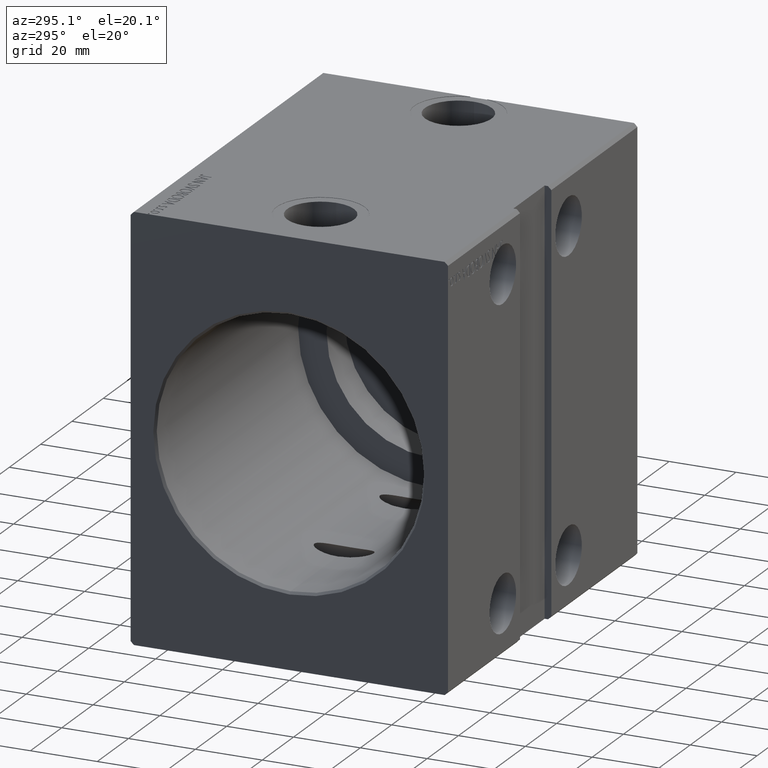
[diagram: clean part render]
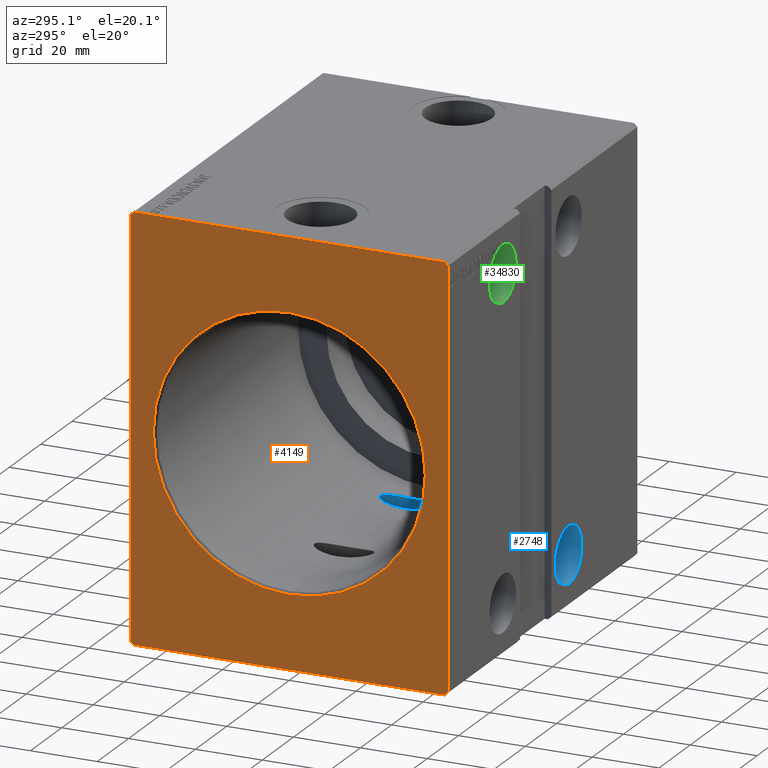
[diagram: same view with three faces highlighted in distinct colors, each labeled with its STEP entity id]
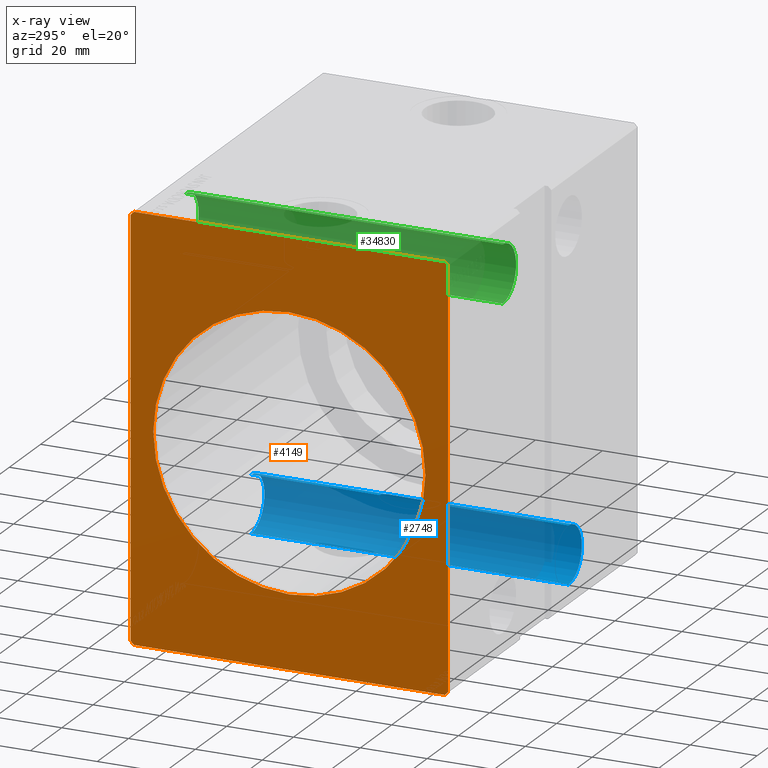
[diagram: x-ray of the same camera — body ghosted, the three highlighted faces saturated]
A machine part, auxiliary view with three faces highlighted in distinct colors.
The next image is the same camera in x-ray (body ghosted, the three faces saturated) — at least one of them is partly hidden behind the body in this view.
Their STEP definitions:

[orange] entity #4149 — the highlighted planar face has unit normal (1, 0, 0).
#698 = DIRECTION ( 'NONE',  ( 1.000000000000000000, 0.000000000000000000, 0.000000000000000000 ) ) ;
#1580 = VECTOR ( 'NONE', #23050, 1000.000000000000114 ) ;
#2018 = EDGE_CURVE ( 'NONE', #17298, #40712, #25623, .T. ) ;
#2163 = VERTEX_POINT ( 'NONE', #26469 ) ;
#2383 = VERTEX_POINT ( 'NONE', #30424 ) ;
#2871 = CARTESIAN_POINT ( 'NONE',  ( 0.000000000000000000, 46.50000000000000000, 62.49999999999998579 ) ) ;
#3050 = DIRECTION ( 'NONE',  ( 0.000000000000000000, -0.7071067811865474617, -0.7071067811865474617 ) ) ;
#4149 = ADVANCED_FACE ( 'NONE', ( #27520, #37358 ), #33945, .F. ) ;
#4648 = LINE ( 'NONE', #17724, #21199 ) ;
#5126 = EDGE_CURVE ( 'NONE', #40712, #22794, #26433, .T. ) ;
#6953 = LINE ( 'NONE', #16603, #1580 ) ;
#7649 = CARTESIAN_POINT ( 'NONE',  ( 0.000000000000000000, -46.50000000000000000, -62.50000000000001421 ) ) ;
#8187 = CARTESIAN_POINT ( 'NONE',  ( 0.000000000000000000, -46.50000000000001421, 62.49999999999997868 ) ) ;
#8744 = DIRECTION ( 'NONE',  ( 0.000000000000000000, 0.000000000000000000, -1.000000000000000000 ) ) ;
#8828 = CARTESIAN_POINT ( 'NONE',  ( 0.000000000000000000, -47.49999999999999289, -61.50000000000001421 ) ) ;
#9181 = ORIENTED_EDGE ( 'NONE', *, *, #28905, .T. ) ;
#9248 = ORIENTED_EDGE ( 'NONE', *, *, #28468, .F. ) ;
#9570 = EDGE_CURVE ( 'NONE', #23276, #17298, #26616, .T. ) ;
#10688 = EDGE_CURVE ( 'NONE', #23806, #25493, #4648, .T. ) ;
#10772 = ORIENTED_EDGE ( 'NONE', *, *, #5126, .F. ) ;
#10985 = EDGE_LOOP ( 'NONE', ( #25765, #27858, #9248, #29759, #17673, #32662, #10772, #18772 ) ) ;
#11545 = DIRECTION ( 'NONE',  ( 1.000000000000000000, 0.000000000000000000, 0.000000000000000000 ) ) ;
#14393 = LINE ( 'NONE', #30496, #23646 ) ;
#14501 = CIRCLE ( 'NONE', #38463, 40.70000000000003837 ) ;
#16334 = CARTESIAN_POINT ( 'NONE',  ( 0.000000000000000000, -46.50000000000001421, 62.49999999999997868 ) ) ;
#16603 = CARTESIAN_POINT ( 'NONE',  ( 0.000000000000000000, -47.49999999999999289, -61.50000000000001421 ) ) ;
#16867 = CARTESIAN_POINT ( 'NONE',  ( 0.000000000000000000, 47.50000000000001421, -61.50000000000001421 ) ) ;
#16982 = AXIS2_PLACEMENT_3D ( 'NONE', #30732, #698, #21075 ) ;
#17298 = VERTEX_POINT ( 'NONE', #34711 ) ;
#17673 = ORIENTED_EDGE ( 'NONE', *, *, #38315, .F. ) ;
#17724 = CARTESIAN_POINT ( 'NONE',  ( 0.000000000000000000, -46.50000000000000000, -62.50000000000001421 ) ) ;
#18609 = CARTESIAN_POINT ( 'NONE',  ( 0.000000000000000000, 0.000000000000000000, 0.000000000000000000 ) ) ;
#18772 = ORIENTED_EDGE ( 'NONE', *, *, #2018, .F. ) ;
#20178 = DIRECTION ( 'NONE',  ( 0.000000000000000000, -0.7071067811865474617, 0.7071067811865474617 ) ) ;
#20729 = LINE ( 'NONE', #16867, #39202 ) ;
#21075 = DIRECTION ( 'NONE',  ( 0.000000000000000000, 0.000000000000000000, -1.000000000000000000 ) ) ;
#21199 = VECTOR ( 'NONE', #34026, 1000.000000000000000 ) ;
#22794 = VERTEX_POINT ( 'NONE', #36416 ) ;
#23050 = DIRECTION ( 'NONE',  ( 0.000000000000000000, 0.7071067811865451302, -0.7071067811865500152 ) ) ;
#23276 = VERTEX_POINT ( 'NONE', #38376 ) ;
#23646 = VECTOR ( 'NONE', #37119, 999.9999999999998863 ) ;
#23806 = VERTEX_POINT ( 'NONE', #7649 ) ;
#24051 = DIRECTION ( 'NONE',  ( 1.000000000000000000, 0.000000000000000000, 0.000000000000000000 ) ) ;
#24515 = VECTOR ( 'NONE', #3050, 1000.000000000000114 ) ;
#25493 = VERTEX_POINT ( 'NONE', #42262 ) ;
#25623 = LINE ( 'NONE', #2871, #36768 ) ;
#25765 = ORIENTED_EDGE ( 'NONE', *, *, #9570, .F. ) ;
#26433 = LINE ( 'NONE', #16334, #24515 ) ;
#26434 = CARTESIAN_POINT ( 'NONE',  ( 0.000000000000000000, 0.000000000000000000, 40.70000000000003837 ) ) ;
#26469 = CARTESIAN_POINT ( 'NONE',  ( 0.000000000000000000, 4.984312472529732047E-15, -40.70000000000003837 ) ) ;
#26616 = LINE ( 'NONE', #33464, #28029 ) ;
#27520 = FACE_BOUND ( 'NONE', #28072, .T. ) ;
#27695 = DIRECTION ( 'NONE',  ( 0.000000000000000000, 0.000000000000000000, -1.000000000000000000 ) ) ;
#27747 = AXIS2_PLACEMENT_3D ( 'NONE', #18609, #11545, #8744 ) ;
#27858 = ORIENTED_EDGE ( 'NONE', *, *, #37067, .F. ) ;
#28029 = VECTOR ( 'NONE', #20178, 1000.000000000000114 ) ;
#28072 = EDGE_LOOP ( 'NONE', ( #9181, #30656 ) ) ;
#28199 = DIRECTION ( 'NONE',  ( 0.000000000000000000, -1.000000000000000000, -7.461176240760460157E-17 ) ) ;
#28468 = EDGE_CURVE ( 'NONE', #25493, #2383, #14393, .T. ) ;
#28905 = EDGE_CURVE ( 'NONE', #42023, #2163, #40729, .T. ) ;
#29611 = CARTESIAN_POINT ( 'NONE',  ( 0.000000000000000000, -47.50000000000001421, 61.49999999999997868 ) ) ;
#29759 = ORIENTED_EDGE ( 'NONE', *, *, #10688, .F. ) ;
#30424 = CARTESIAN_POINT ( 'NONE',  ( 0.000000000000000000, 47.50000000000001421, -61.50000000000001421 ) ) ;
#30496 = CARTESIAN_POINT ( 'NONE',  ( 0.000000000000000000, 46.50000000000000000, -62.50000000000000000 ) ) ;
#30656 = ORIENTED_EDGE ( 'NONE', *, *, #34994, .T. ) ;
#30732 = CARTESIAN_POINT ( 'NONE',  ( 0.000000000000000000, 0.000000000000000000, 0.000000000000000000 ) ) ;
#31025 = VERTEX_POINT ( 'NONE', #8828 ) ;
#32662 = ORIENTED_EDGE ( 'NONE', *, *, #39928, .F. ) ;
#32817 = LINE ( 'NONE', #29611, #33122 ) ;
#33122 = VECTOR ( 'NONE', #39661, 1000.000000000000000 ) ;
#33464 = CARTESIAN_POINT ( 'NONE',  ( 0.000000000000000000, 47.50000000000000000, 61.49999999999998579 ) ) ;
#33805 = DIRECTION ( 'NONE',  ( 0.000000000000000000, -1.128275431529630729E-16, 1.000000000000000000 ) ) ;
#33945 = PLANE ( 'NONE',  #16982 ) ;
#34026 = DIRECTION ( 'NONE',  ( 0.000000000000000000, 1.000000000000000000, 1.492235248152092278E-16 ) ) ;
#34711 = CARTESIAN_POINT ( 'NONE',  ( 0.000000000000000000, 46.50000000000000000, 62.49999999999998579 ) ) ;
#34994 = EDGE_CURVE ( 'NONE', #2163, #42023, #14501, .T. ) ;
#36416 = CARTESIAN_POINT ( 'NONE',  ( 0.000000000000000000, -47.50000000000001421, 61.49999999999997868 ) ) ;
#36768 = VECTOR ( 'NONE', #28199, 1000.000000000000000 ) ;
#37067 = EDGE_CURVE ( 'NONE', #2383, #23276, #20729, .T. ) ;
#37119 = DIRECTION ( 'NONE',  ( 0.000000000000000000, 0.7071067811865574537, 0.7071067811865376918 ) ) ;
#37323 = CARTESIAN_POINT ( 'NONE',  ( 0.000000000000000000, 0.000000000000000000, 0.000000000000000000 ) ) ;
#37358 = FACE_OUTER_BOUND ( 'NONE', #10985, .T. ) ;
#38315 = EDGE_CURVE ( 'NONE', #31025, #23806, #6953, .T. ) ;
#38376 = CARTESIAN_POINT ( 'NONE',  ( 0.000000000000000000, 47.50000000000000000, 61.49999999999998579 ) ) ;
#38463 = AXIS2_PLACEMENT_3D ( 'NONE', #37323, #24051, #27695 ) ;
#39202 = VECTOR ( 'NONE', #33805, 1000.000000000000000 ) ;
#39661 = DIRECTION ( 'NONE',  ( 0.000000000000000000, 1.692413147294445970E-16, -1.000000000000000000 ) ) ;
#39928 = EDGE_CURVE ( 'NONE', #22794, #31025, #32817, .T. ) ;
#40712 = VERTEX_POINT ( 'NONE', #8187 ) ;
#40729 = CIRCLE ( 'NONE', #27747, 40.70000000000003837 ) ;
#42023 = VERTEX_POINT ( 'NONE', #26434 ) ;
#42262 = CARTESIAN_POINT ( 'NONE',  ( 0.000000000000000000, 46.50000000000000000, -62.50000000000000000 ) ) ;

[blue] entity #2748 — the highlighted cylindrical surface (edge-blend (fillet) strip) has radius 8.5 mm, axis along (-0, -1, -0).
#5 = DIRECTION ( 'NONE',  ( -0.000000000000000000, -1.000000000000000000, -5.507058653894625853E-17 ) ) ;
#142 = CARTESIAN_POINT ( 'NONE',  ( 77.44814496955359573, -8.848081900637742692, -39.00919150776434918 ) ) ;
#773 = CARTESIAN_POINT ( 'NONE',  ( 80.72230825713940305, -3.484280546040502635, -39.85734299538246006 ) ) ;
#992 = CARTESIAN_POINT ( 'NONE',  ( 81.00000000000002842, -0.8842772873619378915, -39.99999999999999289 ) ) ;
#1330 = EDGE_LOOP ( 'NONE', ( #8375, #12990, #3168, #13929, #20328, #8191, #25334 ) ) ;
#2026 = CYLINDRICAL_SURFACE ( 'NONE', #21058, 8.500000000000007105 ) ;
#2712 = CARTESIAN_POINT ( 'NONE',  ( 80.54571038801331895, 4.366864057599704196, -39.76972919806477336 ) ) ;
#2748 = ADVANCED_FACE ( 'NONE', ( #31418 ), #2026, .F. ) ;
#2809 = CARTESIAN_POINT ( 'NONE',  ( 77.00000000000001421, 47.50000000000003553, -47.50000000000000000 ) ) ;
#3168 = ORIENTED_EDGE ( 'NONE', *, *, #40738, .T. ) ;
#3990 = CARTESIAN_POINT ( 'NONE',  ( 77.00000000000001421, 47.50000000000003553, -38.99999999999999289 ) ) ;
#4213 = CARTESIAN_POINT ( 'NONE',  ( 80.00983182122091364, -6.007179968913204604, -39.54838495781831398 ) ) ;
#4447 = EDGE_CURVE ( 'NONE', #32976, #12187, #22585, .T. ) ;
#5932 = CARTESIAN_POINT ( 'NONE',  ( 77.86322018110577403, 8.705178891867166868, -39.04132803922884420 ) ) ;
#6401 = AXIS2_PLACEMENT_3D ( 'NONE', #16570, #39510, #10141 ) ;
#7435 = CARTESIAN_POINT ( 'NONE',  ( 78.43557347892667053, -8.344890487185304906, -39.12006350427106582 ) ) ;
#8191 = ORIENTED_EDGE ( 'NONE', *, *, #27830, .F. ) ;
#8375 = ORIENTED_EDGE ( 'NONE', *, *, #9573, .F. ) ;
#8934 = CARTESIAN_POINT ( 'NONE',  ( 80.98638329437710581, 0.8819960549049445930, -39.99268894227613913 ) ) ;
#9535 = EDGE_CURVE ( 'NONE', #36477, #13778, #25305, .T. ) ;
#9573 = EDGE_CURVE ( 'NONE', #13778, #32976, #25977, .T. ) ;
#9835 = VECTOR ( 'NONE', #11617, 1000.000000000000000 ) ;
#10141 = DIRECTION ( 'NONE',  ( 0.000000000000000000, 0.000000000000000000, 1.000000000000000000 ) ) ;
#10226 = CARTESIAN_POINT ( 'NONE',  ( 77.22259166980755651, -8.888194417315617102, -39.00000000000000000 ) ) ;
#11617 = DIRECTION ( 'NONE',  ( -0.000000000000000000, -1.000000000000000000, -5.507058653894625853E-17 ) ) ;
#11733 = CARTESIAN_POINT ( 'NONE',  ( 78.59111670934548499, 8.209697689840799839, -39.14877357463412011 ) ) ;
#12109 = DIRECTION ( 'NONE',  ( -0.000000000000000000, -1.000000000000000000, -5.507058653894625853E-17 ) ) ;
#12154 = CARTESIAN_POINT ( 'NONE',  ( 78.06190118001926237, 8.600817236881001193, -39.06458831139043042 ) ) ;
#12187 = VERTEX_POINT ( 'NONE', #28306 ) ;
#12320 = DIRECTION ( 'NONE',  ( 0.000000000000000000, 0.000000000000000000, -1.000000000000000000 ) ) ;
#12591 = CARTESIAN_POINT ( 'NONE',  ( 81.00000000000002842, 0.4396523920247054629, -40.00000000000000000 ) ) ;
#12990 = ORIENTED_EDGE ( 'NONE', *, *, #9535, .F. ) ;
#13432 = DIRECTION ( 'NONE',  ( -0.000000000000000000, -1.000000000000000000, -5.507058653894625853E-17 ) ) ;
#13630 = VECTOR ( 'NONE', #5, 1000.000000000000000 ) ;
#13778 = VERTEX_POINT ( 'NONE', #41933 ) ;
#13929 = ORIENTED_EDGE ( 'NONE', *, *, #40515, .F. ) ;
#14080 = CARTESIAN_POINT ( 'NONE',  ( 80.94656372586341320, -1.758256962777163812, -39.97069594125082403 ) ) ;
#14825 = LINE ( 'NONE', #40978, #9835 ) ;
#15238 = DIRECTION ( 'NONE',  ( 0.000000000000000000, -1.000000000000000000, -5.507058653894625853E-17 ) ) ;
#15779 = CARTESIAN_POINT ( 'NONE',  ( 80.15652418789123601, 5.611982908940339243, -39.60657601176857412 ) ) ;
#16004 = CARTESIAN_POINT ( 'NONE',  ( 78.42566298075200848, 8.352678000873540398, -39.11839576585898470 ) ) ;
#16570 = CARTESIAN_POINT ( 'NONE',  ( 77.00000000000001421, -47.50000000000000711, -47.50000000000000711 ) ) ;
#16868 = CARTESIAN_POINT ( 'NONE',  ( 77.86954469703442783, -8.702382527277800151, -39.04195325235095737 ) ) ;
#17291 = CARTESIAN_POINT ( 'NONE',  ( 78.91073227392961087, -7.882168046752712876, -39.21603928047622389 ) ) ;
#18810 = CARTESIAN_POINT ( 'NONE',  ( 79.63629655112558225, 6.817500190868268639, -39.41680541524587511 ) ) ;
#19015 = CARTESIAN_POINT ( 'NONE',  ( 80.00453569807767451, 6.020847662574150938, -39.54633044189965574 ) ) ;
#19672 = CARTESIAN_POINT ( 'NONE',  ( 81.00000000000140687, 1.997970507834764869E-13, -40.00000000000000000 ) ) ;
#20328 = ORIENTED_EDGE ( 'NONE', *, *, #36289, .F. ) ;
#21058 = AXIS2_PLACEMENT_3D ( 'NONE', #41260, #12109, #12320 ) ;
#22198 = CARTESIAN_POINT ( 'NONE',  ( 77.00000000000001421, -47.50000000000000711, -56.00000000000001421 ) ) ;
#22450 = CARTESIAN_POINT ( 'NONE',  ( 77.22073123561260388, 8.878721509888563901, -39.00216240224276731 ) ) ;
#22573 = CARTESIAN_POINT ( 'NONE',  ( 77.00000000000001421, -8.888194417315611773, -38.99999999999999289 ) ) ;
#22585 = B_SPLINE_CURVE_WITH_KNOTS ( 'NONE', 3,
 ( #35313, #41733, #22450, #25458, #24819, #5932, #12154, #16004, #11733, #28464, #28248, #41519, #18810, #19015, #15779, #2712, #25033, #41091, #28889, #8934, #12591, #41309 ),
 .UNSPECIFIED., .F., .F.,
 ( 4, 2, 2, 2, 2, 2, 2, 2, 2, 2, 4 ),
 ( 0.03124075680283506032, 0.03156586646944088692, 0.03189097613604671699, 0.03254119546925837020, 0.03319141480247002340, 0.03384163413568167661, 0.03514207280210498302, 0.03644251146852828943, 0.03904338880137488837, 0.04034382746779818785, 0.04164426613422148038 ),
 .UNSPECIFIED. ) ;
#23101 = CARTESIAN_POINT ( 'NONE',  ( 79.43569995406782880, -7.179022913423093399, -39.35214896718181876 ) ) ;
#23463 = VERTEX_POINT ( 'NONE', #28271 ) ;
#23531 = CARTESIAN_POINT ( 'NONE',  ( 79.05180541677445660, -7.710174617361056804, -39.25029562884186163 ) ) ;
#23552 = CIRCLE ( 'NONE', #6401, 8.500000000000007105 ) ;
#24819 = CARTESIAN_POINT ( 'NONE',  ( 77.54851048221541987, 8.813063603515839617, -39.01706381279741009 ) ) ;
#25033 = CARTESIAN_POINT ( 'NONE',  ( 80.71853671562247712, 3.508186181228631462, -39.85547049742937276 ) ) ;
#25305 = CIRCLE ( 'NONE', #36249, 8.500000000000007105 ) ;
#25334 = ORIENTED_EDGE ( 'NONE', *, *, #4447, .F. ) ;
#25458 = CARTESIAN_POINT ( 'NONE',  ( 77.43934574472250176, 8.841323074390446735, -39.01065718486845668 ) ) ;
#25977 = LINE ( 'NONE', #39885, #13630 ) ;
#27830 = EDGE_CURVE ( 'NONE', #12187, #28395, #29761, .T. ) ;
#28248 = CARTESIAN_POINT ( 'NONE',  ( 79.03930862434323501, 7.725932859796192709, -39.24719242089387450 ) ) ;
#28271 = CARTESIAN_POINT ( 'NONE',  ( 77.00000000000001421, -47.50000000000000711, -39.00000000000000000 ) ) ;
#28306 = CARTESIAN_POINT ( 'NONE',  ( 81.00000000000140687, 1.997970507834764869E-13, -40.00000000000000000 ) ) ;
#28395 = VERTEX_POINT ( 'NONE', #22573 ) ;
#28464 = CARTESIAN_POINT ( 'NONE',  ( 78.89834460036773578, 7.896197384792814411, -39.21320792050732962 ) ) ;
#28889 = CARTESIAN_POINT ( 'NONE',  ( 80.93123102730365304, 1.760347307088206525, -39.96366178458815455 ) ) ;
#29068 = CARTESIAN_POINT ( 'NONE',  ( 77.00000000000001421, 47.50000000000003553, -56.00000000000000711 ) ) ;
#29747 = LINE ( 'NONE', #3990, #37130 ) ;
#29761 = B_SPLINE_CURVE_WITH_KNOTS ( 'NONE', 3,
 ( #19672, #992, #14080, #773, #33593, #36166, #4213, #37007, #23101, #23531, #17291, #36797, #7435, #39388, #16868, #142, #10226, #33806 ),
 .UNSPECIFIED., .F., .F.,
 ( 4, 2, 2, 2, 2, 2, 2, 2, 4 ),
 ( 4.021753678917412803E-16, 0.002615585396976376382, 0.005231170793952351177, 0.006538963492440343778, 0.007846756190928337246, 0.008500652540172336583, 0.009154548889416335919, 0.009808445238660335255, 0.01046234158790433459 ),
 .UNSPECIFIED. ) ;
#31378 = CARTESIAN_POINT ( 'NONE',  ( 77.00000000000001421, 8.888194417315609996, -38.99999999999999289 ) ) ;
#31418 = FACE_OUTER_BOUND ( 'NONE', #1330, .T. ) ;
#32976 = VERTEX_POINT ( 'NONE', #31378 ) ;
#33593 = CARTESIAN_POINT ( 'NONE',  ( 80.55324516737658769, -4.336586243679171560, -39.77318005738936790 ) ) ;
#33806 = CARTESIAN_POINT ( 'NONE',  ( 77.00000000000001421, -8.888194417315611773, -38.99999999999999289 ) ) ;
#35313 = CARTESIAN_POINT ( 'NONE',  ( 77.00000000000001421, 8.888194417315609996, -38.99999999999999289 ) ) ;
#36166 = CARTESIAN_POINT ( 'NONE',  ( 80.16384749387300701, -5.591509799604481579, -39.60950613416584787 ) ) ;
#36249 = AXIS2_PLACEMENT_3D ( 'NONE', #2809, #15238, #42042 ) ;
#36289 = EDGE_CURVE ( 'NONE', #28395, #23463, #29747, .T. ) ;
#36372 = VERTEX_POINT ( 'NONE', #22198 ) ;
#36477 = VERTEX_POINT ( 'NONE', #29068 ) ;
#36797 = CARTESIAN_POINT ( 'NONE',  ( 78.60192945023011646, -8.199952475798220064, -39.15082488734757504 ) ) ;
#37007 = CARTESIAN_POINT ( 'NONE',  ( 79.64571886948708368, -6.799238401160328849, -39.41993557979120766 ) ) ;
#37130 = VECTOR ( 'NONE', #13432, 1000.000000000000000 ) ;
#39388 = CARTESIAN_POINT ( 'NONE',  ( 78.06971018587701394, -8.596468886650193042, -39.06555117366413299 ) ) ;
#39510 = DIRECTION ( 'NONE',  ( -0.000000000000000000, 1.000000000000000000, 1.692413147294446216E-16 ) ) ;
#39885 = CARTESIAN_POINT ( 'NONE',  ( 77.00000000000001421, 47.50000000000003553, -38.99999999999999289 ) ) ;
#40515 = EDGE_CURVE ( 'NONE', #23463, #36372, #23552, .T. ) ;
#40738 = EDGE_CURVE ( 'NONE', #36477, #36372, #14825, .T. ) ;
#40978 = CARTESIAN_POINT ( 'NONE',  ( 77.00000000000001421, 47.50000000000003553, -56.00000000000000711 ) ) ;
#41091 = CARTESIAN_POINT ( 'NONE',  ( 80.88971534772775840, 2.198302733259653419, -39.94194461723602529 ) ) ;
#41260 = CARTESIAN_POINT ( 'NONE',  ( 77.00000000000001421, 47.50000000000003553, -47.50000000000000000 ) ) ;
#41309 = CARTESIAN_POINT ( 'NONE',  ( 81.00000000000140687, 1.997970507834764869E-13, -40.00000000000000000 ) ) ;
#41519 = CARTESIAN_POINT ( 'NONE',  ( 79.42428242203959599, 7.197676588651847673, -39.34872371033357297 ) ) ;
#41733 = CARTESIAN_POINT ( 'NONE',  ( 77.11072475337969934, 8.888194417315611773, -39.00000000000000711 ) ) ;
#41933 = CARTESIAN_POINT ( 'NONE',  ( 77.00000000000001421, 47.50000000000003553, -38.99999999999999289 ) ) ;
#42042 = DIRECTION ( 'NONE',  ( 0.000000000000000000, 0.000000000000000000, -1.000000000000000000 ) ) ;

[green] entity #34830 — the highlighted cylindrical surface (edge-blend (fillet) strip) has radius 8.5 mm, axis along (-0, -1, -0).
#146 = CARTESIAN_POINT ( 'NONE',  ( 34.99999999999999289, 47.50000000000003553, 38.99999999999999289 ) ) ;
#268 = VERTEX_POINT ( 'NONE', #35918 ) ;
#414 = VERTEX_POINT ( 'NONE', #38869 ) ;
#1181 = CARTESIAN_POINT ( 'NONE',  ( 34.99999999999999289, -8.888194417315647300, 38.99999999999998579 ) ) ;
#1390 = CARTESIAN_POINT ( 'NONE',  ( 36.42566298075198716, -8.352678000873565267, 39.11839576585896339 ) ) ;
#1902 = EDGE_CURVE ( 'NONE', #33458, #2001, #36999, .T. ) ;
#2001 = VERTEX_POINT ( 'NONE', #25834 ) ;
#3200 = CARTESIAN_POINT ( 'NONE',  ( 36.60192945023006672, 8.199952475798266249, 39.15082488734756794 ) ) ;
#4412 = CARTESIAN_POINT ( 'NONE',  ( 37.63629655112554673, -6.817500190868300614, 39.41680541524585379 ) ) ;
#4761 = VERTEX_POINT ( 'NONE', #7420 ) ;
#5035 = CARTESIAN_POINT ( 'NONE',  ( 38.54571038801328342, -4.366864057599725513, 39.76972919806477336 ) ) ;
#5041 = DIRECTION ( 'NONE',  ( 0.000000000000000000, 0.000000000000000000, -1.000000000000000000 ) ) ;
#5353 = CARTESIAN_POINT ( 'NONE',  ( 38.55324516737658058, 4.336586243679193764, 39.77318005738936080 ) ) ;
#6631 = CARTESIAN_POINT ( 'NONE',  ( 36.43557347892666343, 8.344890487185367078, 39.12006350427105161 ) ) ;
#6966 = EDGE_CURVE ( 'NONE', #414, #4761, #19092, .T. ) ;
#7066 = DIRECTION ( 'NONE',  ( -0.000000000000000000, 1.000000000000000000, 1.692413147294446216E-16 ) ) ;
#7146 = LINE ( 'NONE', #19803, #34371 ) ;
#7420 = CARTESIAN_POINT ( 'NONE',  ( 34.99999999999999289, 47.50000000000003553, 55.99999999999999289 ) ) ;
#7628 = CARTESIAN_POINT ( 'NONE',  ( 38.93123102730363883, -1.760347307088218072, 39.96366178458815455 ) ) ;
#7636 = DIRECTION ( 'NONE',  ( 0.000000000000000000, -1.000000000000000000, -5.507058653894625853E-17 ) ) ;
#8045 = CARTESIAN_POINT ( 'NONE',  ( 38.00453569807764609, -6.020847662574181136, 39.54633044189965574 ) ) ;
#8259 = CARTESIAN_POINT ( 'NONE',  ( 34.99999999999999289, 47.50000000000003553, 47.49999999999999289 ) ) ;
#8494 = EDGE_LOOP ( 'NONE', ( #13507, #24287, #38437, #24496, #11912, #8973, #31286 ) ) ;
#8581 = CARTESIAN_POINT ( 'NONE',  ( 38.72230825713939595, 3.484280546040521287, 39.85734299538246006 ) ) ;
#8674 = DIRECTION ( 'NONE',  ( -0.000000000000000000, -1.000000000000000000, -5.507058653894625853E-17 ) ) ;
#8973 = ORIENTED_EDGE ( 'NONE', *, *, #28964, .T. ) ;
#9434 = CARTESIAN_POINT ( 'NONE',  ( 38.00983182122093496, 6.007179968913225920, 39.54838495781831398 ) ) ;
#9830 = CIRCLE ( 'NONE', #29704, 8.500000000000007105 ) ;
#10847 = CARTESIAN_POINT ( 'NONE',  ( 37.42428242203959599, -7.197676588651887641, 39.34872371033356586 ) ) ;
#11268 = CARTESIAN_POINT ( 'NONE',  ( 35.43934574472248755, -8.841323074390480485, 39.01065718486842826 ) ) ;
#11912 = ORIENTED_EDGE ( 'NONE', *, *, #1902, .F. ) ;
#12010 = CARTESIAN_POINT ( 'NONE',  ( 39.00000000000139977, -1.975033726230713128E-13, 40.00000000000000000 ) ) ;
#12217 = CARTESIAN_POINT ( 'NONE',  ( 35.86954469703439941, 8.702382527277837454, 39.04195325235094316 ) ) ;
#12537 = B_SPLINE_CURVE_WITH_KNOTS ( 'NONE', 3,
 ( #12010, #31315, #24884, #8581, #5353, #31523, #9434, #29375, #19078, #16278, #15843, #3200, #6631, #16069, #12217, #32159, #42432, #38362 ),
 .UNSPECIFIED., .F., .F.,
 ( 4, 2, 2, 2, 2, 2, 2, 2, 4 ),
 ( 4.041264202224836000E-16, 0.002615585396976400669, 0.005231170793952397147, 0.006538963492440391483, 0.007846756190928385818, 0.008500652540172383420, 0.009154548889416382756, 0.009808445238660380358, 0.01046234158790437796 ),
 .UNSPECIFIED. ) ;
#13507 = ORIENTED_EDGE ( 'NONE', *, *, #31743, .F. ) ;
#14061 = CARTESIAN_POINT ( 'NONE',  ( 35.54851048221539855, -8.813063603515876920, 39.01706381279742430 ) ) ;
#15406 = EDGE_CURVE ( 'NONE', #2001, #268, #12537, .T. ) ;
#15843 = CARTESIAN_POINT ( 'NONE',  ( 36.91073227392959666, 7.882168046752754620, 39.21603928047621679 ) ) ;
#15853 = CARTESIAN_POINT ( 'NONE',  ( 34.99999999999999289, -47.50000000000002132, 55.99999999999999289 ) ) ;
#16069 = CARTESIAN_POINT ( 'NONE',  ( 36.06971018587698552, 8.596468886650258767, 39.06555117366413299 ) ) ;
#16278 = CARTESIAN_POINT ( 'NONE',  ( 37.05180541677442108, 7.710174617361084337, 39.25029562884185452 ) ) ;
#16451 = LINE ( 'NONE', #146, #25008 ) ;
#16499 = CARTESIAN_POINT ( 'NONE',  ( 34.99999999999999289, -8.888194417315647300, 38.99999999999998579 ) ) ;
#17822 = VERTEX_POINT ( 'NONE', #32083 ) ;
#18540 = CARTESIAN_POINT ( 'NONE',  ( 34.99999999999999289, 47.50000000000003553, 47.49999999999999289 ) ) ;
#19078 = CARTESIAN_POINT ( 'NONE',  ( 37.43569995406782880, 7.179022913423121821, 39.35214896718182587 ) ) ;
#19092 = CIRCLE ( 'NONE', #28002, 8.500000000000000000 ) ;
#19803 = CARTESIAN_POINT ( 'NONE',  ( 34.99999999999999289, 47.50000000000003553, 38.99999999999999289 ) ) ;
#20235 = DIRECTION ( 'NONE',  ( -0.000000000000000000, -1.000000000000000000, -5.507058653894625853E-17 ) ) ;
#20575 = CARTESIAN_POINT ( 'NONE',  ( 34.99999999999999289, -47.50000000000002132, 47.49999999999998579 ) ) ;
#20712 = CARTESIAN_POINT ( 'NONE',  ( 38.98638329437710581, -0.8819960549049492560, 39.99268894227613202 ) ) ;
#21126 = CARTESIAN_POINT ( 'NONE',  ( 39.00000000000139977, -1.975033726230713128E-13, 40.00000000000000000 ) ) ;
#22661 = LINE ( 'NONE', #31888, #24710 ) ;
#23389 = EDGE_CURVE ( 'NONE', #33441, #17822, #9830, .T. ) ;
#24104 = AXIS2_PLACEMENT_3D ( 'NONE', #18540, #8674, #5041 ) ;
#24287 = ORIENTED_EDGE ( 'NONE', *, *, #6966, .F. ) ;
#24352 = CARTESIAN_POINT ( 'NONE',  ( 36.59111670934544946, -8.209697689840838919, 39.14877357463409879 ) ) ;
#24496 = ORIENTED_EDGE ( 'NONE', *, *, #15406, .F. ) ;
#24710 = VECTOR ( 'NONE', #29318, 1000.000000000000000 ) ;
#24884 = CARTESIAN_POINT ( 'NONE',  ( 38.94656372586340609, 1.758256962777178023, 39.97069594125082403 ) ) ;
#25008 = VECTOR ( 'NONE', #29341, 1000.000000000000000 ) ;
#25834 = CARTESIAN_POINT ( 'NONE',  ( 39.00000000000139977, -1.975033726230713128E-13, 40.00000000000000000 ) ) ;
#27567 = CARTESIAN_POINT ( 'NONE',  ( 36.89834460036773578, -7.896197384792859708, 39.21320792050733672 ) ) ;
#27788 = FACE_OUTER_BOUND ( 'NONE', #8494, .T. ) ;
#27991 = CARTESIAN_POINT ( 'NONE',  ( 38.15652418789123601, -5.611982908940366777, 39.60657601176856701 ) ) ;
#28002 = AXIS2_PLACEMENT_3D ( 'NONE', #8259, #7636, #40428 ) ;
#28964 = EDGE_CURVE ( 'NONE', #33458, #17822, #16451, .T. ) ;
#29318 = DIRECTION ( 'NONE',  ( -0.000000000000000000, -1.000000000000000000, -5.507058653894625853E-17 ) ) ;
#29341 = DIRECTION ( 'NONE',  ( -0.000000000000000000, -1.000000000000000000, -5.507058653894625853E-17 ) ) ;
#29375 = CARTESIAN_POINT ( 'NONE',  ( 37.64571886948710500, 6.799238401160353718, 39.41993557979120055 ) ) ;
#29704 = AXIS2_PLACEMENT_3D ( 'NONE', #20575, #7066, #33862 ) ;
#30369 = CARTESIAN_POINT ( 'NONE',  ( 39.00000000000001421, -0.4396523920247069062, 39.99999999999999289 ) ) ;
#30779 = CARTESIAN_POINT ( 'NONE',  ( 36.06190118001924105, -8.600817236881033168, 39.06458831139042331 ) ) ;
#31286 = ORIENTED_EDGE ( 'NONE', *, *, #23389, .F. ) ;
#31315 = CARTESIAN_POINT ( 'NONE',  ( 39.00000000000003553, 0.8842772873619435536, 40.00000000000000000 ) ) ;
#31523 = CARTESIAN_POINT ( 'NONE',  ( 38.16384749387303543, 5.591509799604510000, 39.60950613416584787 ) ) ;
#31743 = EDGE_CURVE ( 'NONE', #4761, #33441, #22661, .T. ) ;
#31888 = CARTESIAN_POINT ( 'NONE',  ( 34.99999999999999289, 47.50000000000003553, 55.99999999999999289 ) ) ;
#32083 = CARTESIAN_POINT ( 'NONE',  ( 34.99999999999999289, -47.50000000000002132, 38.99999999999997868 ) ) ;
#32159 = CARTESIAN_POINT ( 'NONE',  ( 35.44814496955356731, 8.848081900637779995, 39.00919150776432787 ) ) ;
#33441 = VERTEX_POINT ( 'NONE', #15853 ) ;
#33458 = VERTEX_POINT ( 'NONE', #16499 ) ;
#33862 = DIRECTION ( 'NONE',  ( 0.000000000000000000, 0.000000000000000000, 1.000000000000000000 ) ) ;
#33982 = EDGE_CURVE ( 'NONE', #414, #268, #7146, .T. ) ;
#33996 = CARTESIAN_POINT ( 'NONE',  ( 35.11072475337967091, -8.888194417315668616, 39.00000000000000000 ) ) ;
#34371 = VECTOR ( 'NONE', #20235, 1000.000000000000000 ) ;
#34406 = CARTESIAN_POINT ( 'NONE',  ( 35.86322018110575272, -8.705178891867207724, 39.04132803922882999 ) ) ;
#34618 = CARTESIAN_POINT ( 'NONE',  ( 38.88971534772777261, -2.198302733259665409, 39.94194461723602529 ) ) ;
#34830 = ADVANCED_FACE ( 'NONE', ( #27788 ), #41049, .F. ) ;
#35918 = CARTESIAN_POINT ( 'NONE',  ( 34.99999999999999289, 8.888194417315633089, 38.99999999999998579 ) ) ;
#36989 = CARTESIAN_POINT ( 'NONE',  ( 38.71853671562244159, -3.508186181228653666, 39.85547049742936565 ) ) ;
#36999 = B_SPLINE_CURVE_WITH_KNOTS ( 'NONE', 3,
 ( #1181, #33996, #40837, #11268, #14061, #34406, #30779, #1390, #24352, #27567, #40213, #10847, #4412, #8045, #27991, #5035, #36989, #34618, #7628, #20712, #30369, #21126 ),
 .UNSPECIFIED., .F., .F.,
 ( 4, 2, 2, 2, 2, 2, 2, 2, 2, 2, 4 ),
 ( 0.03124075680283536910, 0.03156586646944119223, 0.03189097613604702230, 0.03254119546925867551, 0.03319141480247032872, 0.03384163413568198192, 0.03514207280210529527, 0.03644251146852860168, 0.03904338880137522144, 0.04034382746779853479, 0.04164426613422184814 ),
 .UNSPECIFIED. ) ;
#38362 = CARTESIAN_POINT ( 'NONE',  ( 34.99999999999999289, 8.888194417315633089, 38.99999999999998579 ) ) ;
#38437 = ORIENTED_EDGE ( 'NONE', *, *, #33982, .T. ) ;
#38869 = CARTESIAN_POINT ( 'NONE',  ( 34.99999999999999289, 47.50000000000003553, 38.99999999999999289 ) ) ;
#40213 = CARTESIAN_POINT ( 'NONE',  ( 37.03930862434322080, -7.725932859796233565, 39.24719242089388160 ) ) ;
#40428 = DIRECTION ( 'NONE',  ( 0.000000000000000000, 0.000000000000000000, -1.000000000000000000 ) ) ;
#40837 = CARTESIAN_POINT ( 'NONE',  ( 35.22073123561258257, -8.878721509888597652, 39.00216240224276731 ) ) ;
#41049 = CYLINDRICAL_SURFACE ( 'NONE', #24104, 8.500000000000000000 ) ;
#42432 = CARTESIAN_POINT ( 'NONE',  ( 35.22259166980754230, 8.888194417315640194, 38.99999999999998579 ) ) ;